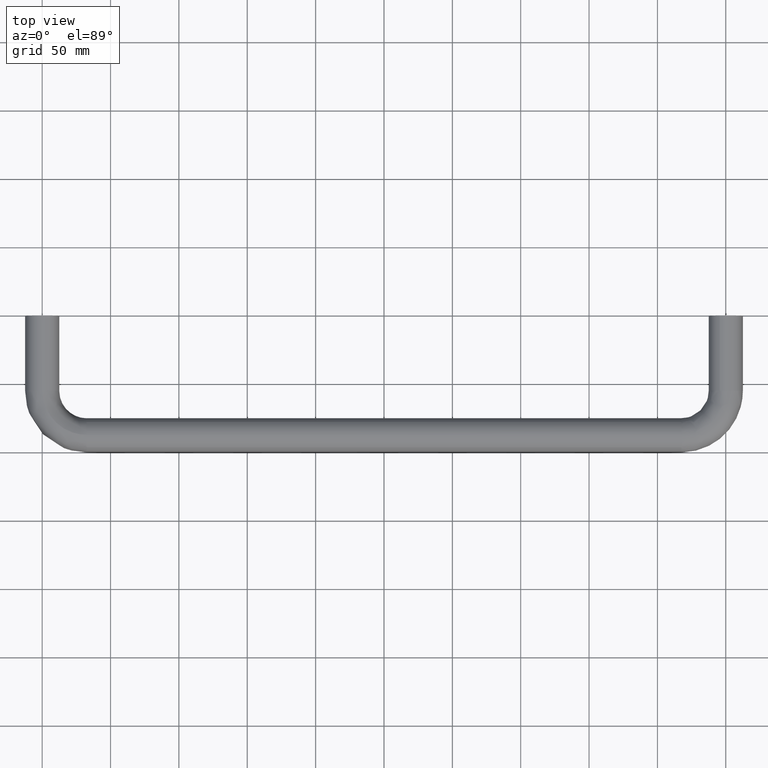
[diagram: clean part render]
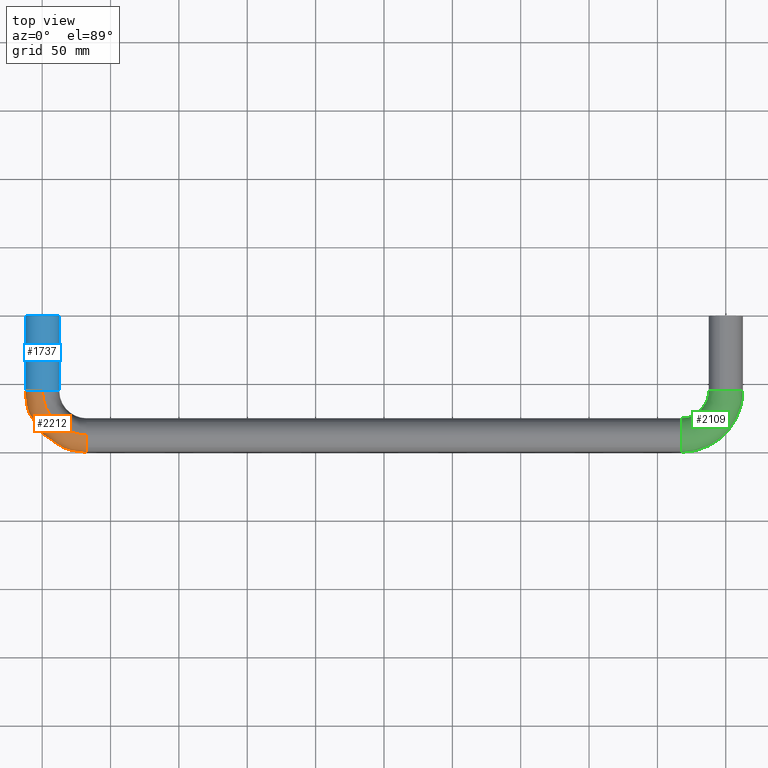
[diagram: same view with three faces highlighted in distinct colors, each labeled with its STEP entity id]
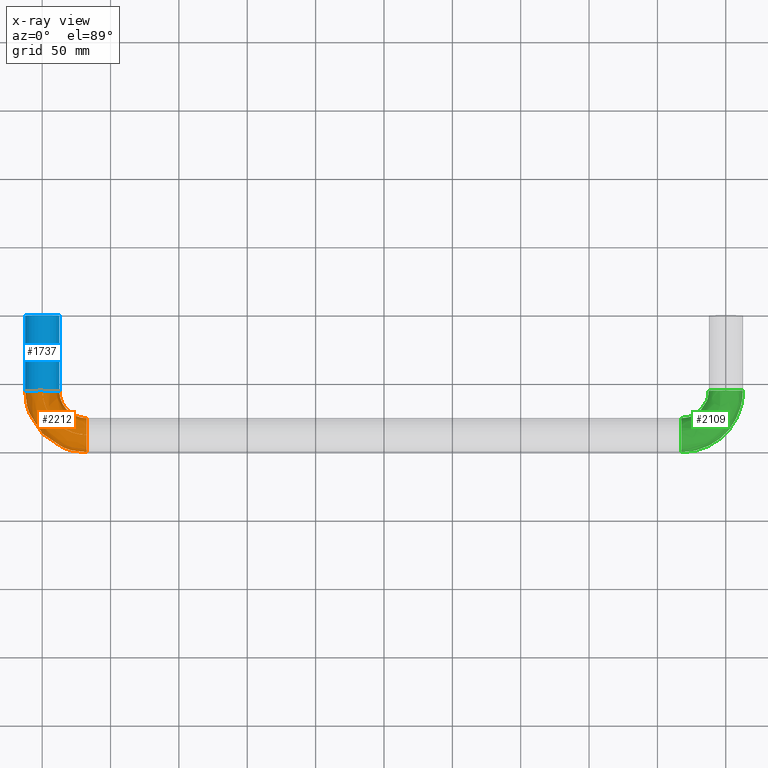
[diagram: x-ray of the same camera — body ghosted, the three highlighted faces saturated]
A machine part, top view with three faces highlighted in distinct colors.
The next image is the same camera in x-ray (body ghosted, the three faces saturated) — at least one of them is partly hidden behind the body in this view.
Their STEP definitions:

[orange] entity #2212 — the highlighted face is a freeform B-spline surface patch.
#1363=CARTESIAN_POINT('',(32.499999996103540,-87.342924495854845,12.499013052477279));
#1364=VERTEX_POINT('',#1363);
#1378=CARTESIAN_POINT('',(32.500000000000000,-87.500000000000000,12.500000000000000));
#1379=VERTEX_POINT('',#1378);
#1380=CARTESIAN_POINT('',(32.499999996103540,-87.342924495854845,12.499013052477286));
#1381=CARTESIAN_POINT('',(32.500000000000000,-87.421459144497447,12.500000000000000));
#1382=CARTESIAN_POINT('',(32.500000000000000,-87.500000000000000,12.500000000000000));
#1390=(BOUNDED_CURVE()B_SPLINE_CURVE(2,(#1380,#1381,#1382),.UNSPECIFIED.,.F.,.U.)B_SPLINE_CURVE_WITH_KNOTS((3,3),(0.997784295764047,1.0),.UNSPECIFIED.)CURVE()GEOMETRIC_REPRESENTATION_ITEM()RATIONAL_B_SPLINE_CURVE((0.994854295281092,0.997404141017573,1.0))REPRESENTATION_ITEM(''));
#1391=EDGE_CURVE('',#1364,#1379,#1390,.T.);
#1393=CARTESIAN_POINT('',(32.500000000000000,-96.415632055581426,8.761364337218531));
#1394=VERTEX_POINT('',#1393);
#1395=CARTESIAN_POINT('',(32.500000000000000,-87.500000000000000,12.500000000000000));
#1396=CARTESIAN_POINT('',(32.499999999999993,-92.741686230816370,12.499999999999998));
#1397=CARTESIAN_POINT('',(32.500000000000000,-96.415632055581554,8.761364337218637));
#1405=(BOUNDED_CURVE()B_SPLINE_CURVE(2,(#1395,#1396,#1397),.UNSPECIFIED.,.F.,.U.)B_SPLINE_CURVE_WITH_KNOTS((3,3),(0.0,0.126316782411142),.UNSPECIFIED.)CURVE()GEOMETRIC_REPRESENTATION_ITEM()RATIONAL_B_SPLINE_CURVE((1.0,0.852010684037768,0.853569641864137))REPRESENTATION_ITEM(''));
#1406=EDGE_CURVE('',#1379,#1394,#1405,.T.);
#1475=CARTESIAN_POINT('',(32.500000001655842,-75.030429128414596,-0.871666380278624));
#1476=VERTEX_POINT('',#1475);
#1538=CARTESIAN_POINT('',(32.500000000000000,-87.500000000000000,-12.500000000000000));
#1539=VERTEX_POINT('',#1538);
#1540=CARTESIAN_POINT('',(32.499999999999993,-96.415632055581554,8.761364337218636));
#1541=CARTESIAN_POINT('',(32.500000000000000,-100.0,5.113883817717606));
#1542=CARTESIAN_POINT('',(32.500000000000000,-99.999999999999986,0.0));
#1543=CARTESIAN_POINT('',(32.499999999999993,-99.999999999999986,-12.499999999999998));
#1544=CARTESIAN_POINT('',(32.500000000000000,-87.500000000000000,-12.500000000000000));
#1552=(BOUNDED_CURVE()B_SPLINE_CURVE(2,(#1540,#1541,#1542,#1543,#1544),.UNSPECIFIED.,.F.,.U.)B_SPLINE_CURVE_WITH_KNOTS((3,2,3),(0.126316782411142,0.250000000000000,0.500000000000000),.UNSPECIFIED.)CURVE()GEOMETRIC_REPRESENTATION_ITEM()RATIONAL_B_SPLINE_CURVE((0.853569641864137,0.855096097148779,1.0,0.707106781186547,1.0))REPRESENTATION_ITEM(''));
#1553=EDGE_CURVE('',#1394,#1539,#1552,.T.);
#1555=CARTESIAN_POINT('',(32.500000000000000,-87.500000000000000,-12.500000000000000));
#1556=CARTESIAN_POINT('',(32.500000000000000,-75.843290787792370,-12.500000000000002));
#1557=CARTESIAN_POINT('',(32.500000001655842,-75.030429128414596,-0.871666380278624));
#1565=(BOUNDED_CURVE()B_SPLINE_CURVE(2,(#1555,#1556,#1557),.UNSPECIFIED.,.F.,.U.)B_SPLINE_CURVE_WITH_KNOTS((3,3),(0.500000000000000,0.737833666244487),.UNSPECIFIED.)CURVE()GEOMETRIC_REPRESENTATION_ITEM()RATIONAL_B_SPLINE_CURVE((1.0,0.721360527805791,0.972879833470602))REPRESENTATION_ITEM(''));
#1566=EDGE_CURVE('',#1539,#1476,#1565,.T.);
#1597=CARTESIAN_POINT('',(-4.395224680098610,-55.0,-11.701794734631610));
#1598=VERTEX_POINT('',#1597);
#1599=CARTESIAN_POINT('',(0.0,-55.0,-12.500000000000000));
#1600=VERTEX_POINT('',#1599);
#1601=CARTESIAN_POINT('',(-4.395224680098610,-54.999999999999986,-11.701794734631608));
#1602=CARTESIAN_POINT('',(-2.270092326059568,-55.000000000000007,-12.499999999999998));
#1603=CARTESIAN_POINT('',(0.0,-55.0,-12.500000000000000));
#1611=(BOUNDED_CURVE()B_SPLINE_CURVE(2,(#1601,#1602,#1603),.UNSPECIFIED.,.F.,.U.)B_SPLINE_CURVE_WITH_KNOTS((3,3),(0.440284170893403,0.500000000000000),.UNSPECIFIED.)CURVE()GEOMETRIC_REPRESENTATION_ITEM()RATIONAL_B_SPLINE_CURVE((0.893499554629027,0.930038554395419,1.0))REPRESENTATION_ITEM(''));
#1612=EDGE_CURVE('',#1598,#1600,#1611,.T.);
#1668=CARTESIAN_POINT('',(-12.476684980152760,-55.0,0.763106746157077));
#1669=VERTEX_POINT('',#1668);
#1675=CARTESIAN_POINT('',(0.0,-55.0,12.500000000000000));
#1676=VERTEX_POINT('',#1675);
#1677=CARTESIAN_POINT('',(0.0,-55.0,12.500000000000000));
#1678=CARTESIAN_POINT('',(-11.758825832598347,-55.000000000000014,12.500000000000000));
#1679=CARTESIAN_POINT('',(-12.476684980152765,-55.0,0.763106746157077));
#1687=(BOUNDED_CURVE()B_SPLINE_CURVE(2,(#1677,#1678,#1679),.UNSPECIFIED.,.F.,.U.)B_SPLINE_CURVE_WITH_KNOTS((3,3),(0.0,0.239332962187442),.UNSPECIFIED.)CURVE()GEOMETRIC_REPRESENTATION_ITEM()RATIONAL_B_SPLINE_CURVE((1.0,0.719603993347047,0.976072041556341))REPRESENTATION_ITEM(''));
#1688=EDGE_CURVE('',#1676,#1669,#1687,.T.);
#1690=CARTESIAN_POINT('',(0.157075501708463,-55.000000002799233,12.499013052507911));
#1691=VERTEX_POINT('',#1690);
#1692=CARTESIAN_POINT('',(0.157075501708463,-55.000000002799233,12.499013052507905));
#1693=CARTESIAN_POINT('',(0.078540853065549,-55.0,12.499999999999998));
#1694=CARTESIAN_POINT('',(0.0,-55.0,12.500000000000000));
#1702=(BOUNDED_CURVE()B_SPLINE_CURVE(2,(#1692,#1693,#1694),.UNSPECIFIED.,.F.,.U.)B_SPLINE_CURVE_WITH_KNOTS((3,3),(0.997784295832618,1.0),.UNSPECIFIED.)CURVE()GEOMETRIC_REPRESENTATION_ITEM()RATIONAL_B_SPLINE_CURVE((0.994854295438916,0.997404141097909,1.0))REPRESENTATION_ITEM(''));
#1703=EDGE_CURVE('',#1691,#1676,#1702,.T.);
#1705=CARTESIAN_POINT('',(12.469570871586880,-54.999999998405812,-0.871666380257642));
#1706=VERTEX_POINT('',#1705);
#1722=CARTESIAN_POINT('',(0.0,-55.0,-12.500000000000000));
#1723=CARTESIAN_POINT('',(11.656709212246867,-55.0,-12.500000000000000));
#1724=CARTESIAN_POINT('',(12.469570871586882,-54.999999998405812,-0.871666380257642));
#1732=(BOUNDED_CURVE()B_SPLINE_CURVE(2,(#1722,#1723,#1724),.UNSPECIFIED.,.F.,.U.)B_SPLINE_CURVE_WITH_KNOTS((3,3),(0.500000000000000,0.737833666245064),.UNSPECIFIED.)CURVE()GEOMETRIC_REPRESENTATION_ITEM()RATIONAL_B_SPLINE_CURVE((1.0,0.721360527805115,0.972879833471823))REPRESENTATION_ITEM(''));
#1733=EDGE_CURVE('',#1600,#1706,#1732,.T.);
#1752=CARTESIAN_POINT('',(-12.476684980152761,-55.000000000000007,0.763106746157077));
#1753=CARTESIAN_POINT('',(-12.500000000000005,-55.000000000000007,0.381909543209257));
#1754=CARTESIAN_POINT('',(-12.500000000000000,-55.0,0.0));
#1755=CARTESIAN_POINT('',(-12.500000000000000,-55.000000000000014,-8.657619945857883));
#1756=CARTESIAN_POINT('',(-4.395224680098611,-55.0,-11.701794734631610));
#1764=(BOUNDED_CURVE()B_SPLINE_CURVE(2,(#1752,#1753,#1754,#1755,#1756),.UNSPECIFIED.,.F.,.U.)B_SPLINE_CURVE_WITH_KNOTS((3,2,3),(0.239332962187442,0.250000000000000,0.440284170893404),.UNSPECIFIED.)CURVE()GEOMETRIC_REPRESENTATION_ITEM()RATIONAL_B_SPLINE_CURVE((0.976072041556342,0.987502787839500,1.0,0.777068226791128,0.893499554629028))REPRESENTATION_ITEM(''));
#1765=EDGE_CURVE('',#1669,#1598,#1764,.T.);
#2140=CARTESIAN_POINT('',(12.536022956801924,-53.615886789675130,-0.606601381332851));
#2141=CARTESIAN_POINT('',(10.944486397594913,-76.571667497787260,-0.606601381332850));
#2142=CARTESIAN_POINT('',(33.899068399525042,-74.962934563179502,-0.606601381332850));
#2143=CARTESIAN_POINT('',(12.526818279209644,-53.615248624452605,-0.738594541797111));
#2144=CARTESIAN_POINT('',(10.934547919273847,-76.581613424093192,-0.738594541797111));
#2145=CARTESIAN_POINT('',(33.899713460051778,-74.972138760121425,-0.738594541797111));
#2146=CARTESIAN_POINT('',(11.696349228770707,-53.557671760835120,-12.647347839919878));
#2147=CARTESIAN_POINT('',(10.037873530479553,-77.478959788723287,-12.647347839919876));
#2148=CARTESIAN_POINT('',(33.957912435272945,-75.802564445083178,-12.647347839919879));
#2149=CARTESIAN_POINT('',(-0.078870558547338,-52.741289472534575,-12.499013052547699));
#2150=CARTESIAN_POINT('',(-2.676071679316352,-90.202432943183467,-12.499013052547697));
#2151=CARTESIAN_POINT('',(34.783115643343734,-87.577169353345994,-12.499013052547690));
#2152=CARTESIAN_POINT('',(-12.547951825996599,-51.876801396559181,-12.341937554005790));
#2153=CARTESIAN_POINT('',(-16.139193295235668,-103.675643943290620,-12.341937554005790));
#2154=CARTESIAN_POINT('',(35.656944416771523,-100.045599509644220,-12.341937554005792));
#2155=CARTESIAN_POINT('',(-12.391252481159530,-51.887665445980247,0.157075498541906));
#2156=CARTESIAN_POINT('',(-15.970001813407443,-103.506325667847220,0.157075498541906));
#2157=CARTESIAN_POINT('',(35.645962982505523,-99.888908347341911,0.157075498541906));
#2158=CARTESIAN_POINT('',(-12.234553136322470,-51.898529495401299,12.656088551089603));
#2159=CARTESIAN_POINT('',(-15.800810331579218,-103.337007392403810,12.656088551089603));
#2160=CARTESIAN_POINT('',(35.634981548239523,-99.732217185039573,12.656088551089603));
#2161=CARTESIAN_POINT('',(0.366578912228247,-52.772172722685518,12.497349582575096));
#2162=CARTESIAN_POINT('',(-2.195110791327415,-89.721111618787830,12.497349582575094));
#2163=CARTESIAN_POINT('',(34.751898703111905,-87.131743143074630,12.497349582575096));
#2164=CARTESIAN_POINT('',(0.497476237730351,-52.781247904300457,12.495700642912256));
#2165=CARTESIAN_POINT('',(-2.053778276554744,-89.579673188159916,12.495700642912254));
#2166=CARTESIAN_POINT('',(34.742725465169570,-87.000852652776047,12.495700642912253));
#2174=(BOUNDED_SURFACE()B_SPLINE_SURFACE(2,2,((#2140,#2143,#2146,#2149,#2152,#2155,#2158,#2161,#2164),(#2141,#2144,#2147,#2150,#2153,#2156,#2159,#2162,#2165),(#2142,#2145,#2148,#2151,#2154,#2157,#2160,#2163,#2166)),.UNSPECIFIED.,.F.,.F.,.U.)B_SPLINE_SURFACE_WITH_KNOTS((3,3),(3,1,2,2,1,3),(0.0,82.004379108096202),(0.0,0.306782556558622,20.189033550467190,40.899711669121942,61.610389787776697,61.921937893503767),.UNSPECIFIED.)GEOMETRIC_REPRESENTATION_ITEM()RATIONAL_B_SPLINE_SURFACE(((0.908116030366930,0.904437933542395,0.662386295974072,0.921487970695580,0.651590392860676,0.921487970695580,0.651590392860676,0.925548005747694,0.929608040799809),(0.592626726255751,0.590226439940911,0.432266152092013,0.601353110281207,0.425220862167464,0.601353110281207,0.425220862167464,0.604002645363686,0.606652180446164),(0.898083420910020,0.894445958660530,0.655068439230114,0.911307631818076,0.644391806205615,0.911307631818076,0.644391806205615,0.915322812749464,0.919337993680853)))REPRESENTATION_ITEM('')SURFACE());
#2175=ORIENTED_EDGE('',*,*,#1566,.F.);
#2176=ORIENTED_EDGE('',*,*,#1553,.F.);
#2177=ORIENTED_EDGE('',*,*,#1406,.F.);
#2178=ORIENTED_EDGE('',*,*,#1391,.F.);
#2179=CARTESIAN_POINT('',(0.157075501708463,-55.000000002799226,12.499013052507902));
#2180=CARTESIAN_POINT('',(0.157075504140359,-87.342924493665151,12.499013052547697));
#2181=CARTESIAN_POINT('',(32.499999996103540,-87.342924495854831,12.499013052477284));
#2189=(BOUNDED_CURVE()B_SPLINE_CURVE(2,(#2179,#2180,#2181),.UNSPECIFIED.,.F.,.U.)B_SPLINE_CURVE_WITH_KNOTS((3,3),(-1.747842683488428,-0.278273131195405),.UNSPECIFIED.)CURVE()GEOMETRIC_REPRESENTATION_ITEM()RATIONAL_B_SPLINE_CURVE((0.893710737898865,0.628668022965895,0.884455039368525))REPRESENTATION_ITEM(''));
#2190=EDGE_CURVE('',#1691,#1364,#2189,.T.);
#2191=ORIENTED_EDGE('',*,*,#2190,.F.);
#2192=ORIENTED_EDGE('',*,*,#1703,.T.);
#2193=ORIENTED_EDGE('',*,*,#1688,.T.);
#2194=ORIENTED_EDGE('',*,*,#1765,.T.);
#2195=ORIENTED_EDGE('',*,*,#1612,.T.);
#2196=ORIENTED_EDGE('',*,*,#1733,.T.);
#2197=CARTESIAN_POINT('',(12.469570871586884,-54.999999998405812,-0.871666380257642));
#2198=CARTESIAN_POINT('',(12.469570919817036,-75.030429080306305,-0.871665644693026));
#2199=CARTESIAN_POINT('',(32.500000001655849,-75.030429128414596,-0.871666380278624));
#2207=(BOUNDED_CURVE()B_SPLINE_CURVE(2,(#2197,#2198,#2199),.UNSPECIFIED.,.F.,.U.)B_SPLINE_CURVE_WITH_KNOTS((3,3),(-1.747842683835509,-0.278273130775413),.UNSPECIFIED.)CURVE()GEOMETRIC_REPRESENTATION_ITEM()RATIONAL_B_SPLINE_CURVE((0.873607430651412,0.614526639090470,0.864559931668131))REPRESENTATION_ITEM(''));
#2208=EDGE_CURVE('',#1706,#1476,#2207,.T.);
#2209=ORIENTED_EDGE('',*,*,#2208,.T.);
#2210=EDGE_LOOP('',(#2175,#2176,#2177,#2178,#2191,#2192,#2193,#2194,#2195,#2196,#2209));
#2211=FACE_OUTER_BOUND('',#2210,.T.);
#2212=ADVANCED_FACE('',(#2211),#2174,.T.);

[blue] entity #1737 — the highlighted face is a freeform B-spline surface patch.
#1571=CARTESIAN_POINT('',(-4.395224679894646,1.375000000069982,-11.701794734708219));
#1572=CARTESIAN_POINT('',(-2.637368146442596,1.375000000069982,-12.362050242064381));
#1573=CARTESIAN_POINT('',(-0.763106744185705,1.375000000069982,-12.476684980273340));
#1574=CARTESIAN_POINT('',(11.713578236087629,1.375000000069982,-13.239791724459041));
#1575=CARTESIAN_POINT('',(12.476684980273340,1.375000000069982,-0.763106744185705));
#1576=CARTESIAN_POINT('',(13.239791724459041,1.375000000069982,11.713578236087629));
#1577=CARTESIAN_POINT('',(0.763106744185705,1.375000000069982,12.476684980273340));
#1578=CARTESIAN_POINT('',(-11.713578236087629,1.375000000069982,13.239791724459041));
#1579=CARTESIAN_POINT('',(-12.476684980273340,1.375000000069982,0.763106744185705));
#1580=CARTESIAN_POINT('',(-4.395224679894646,-56.409375002870959,-11.701794734708219));
#1581=CARTESIAN_POINT('',(-2.637368146442596,-56.409375002870959,-12.362050242064381));
#1582=CARTESIAN_POINT('',(-0.763106744185705,-56.409375002870959,-12.476684980273340));
#1583=CARTESIAN_POINT('',(11.713578236087629,-56.409375002870952,-13.239791724459041));
#1584=CARTESIAN_POINT('',(12.476684980273340,-56.409375002870959,-0.763106744185705));
#1585=CARTESIAN_POINT('',(13.239791724459041,-56.409375002870952,11.713578236087629));
#1586=CARTESIAN_POINT('',(0.763106744185705,-56.409375002870959,12.476684980273340));
#1587=CARTESIAN_POINT('',(-11.713578236087629,-56.409375002870952,13.239791724459041));
#1588=CARTESIAN_POINT('',(-12.476684980273340,-56.409375002870959,0.763106744185705));
#1596=(BOUNDED_SURFACE()B_SPLINE_SURFACE(2,1,((#1571,#1580),(#1572,#1581),(#1573,#1582),(#1574,#1583),(#1575,#1584),(#1576,#1585),(#1577,#1586),(#1578,#1587),(#1579,#1588)),.UNSPECIFIED.,.F.,.F.,.U.)B_SPLINE_SURFACE_WITH_KNOTS((3,2,2,2,3),(2,2),(0.0,4.142135623730949,24.852813742385699,45.563491861040447,66.274169979695188),(0.0,57.784375002940948),.UNSPECIFIED.)GEOMETRIC_REPRESENTATION_ITEM()RATIONAL_B_SPLINE_SURFACE(((0.906274169979695,0.906274169979695),(0.941421356237309,0.941421356237309),(1.0,1.0),(0.707106781186548,0.707106781186548),(1.0,1.0),(0.707106781186548,0.707106781186548),(1.0,1.0),(0.707106781186548,0.707106781186548),(1.0,1.0)))REPRESENTATION_ITEM('')SURFACE());
#1597=CARTESIAN_POINT('',(-4.395224680098610,-55.0,-11.701794734631610));
#1598=VERTEX_POINT('',#1597);
#1599=CARTESIAN_POINT('',(0.0,-55.0,-12.500000000000000));
#1600=VERTEX_POINT('',#1599);
#1601=CARTESIAN_POINT('',(-4.395224680098610,-54.999999999999986,-11.701794734631608));
#1602=CARTESIAN_POINT('',(-2.270092326059568,-55.000000000000007,-12.499999999999998));
#1603=CARTESIAN_POINT('',(0.0,-55.0,-12.500000000000000));
#1611=(BOUNDED_CURVE()B_SPLINE_CURVE(2,(#1601,#1602,#1603),.UNSPECIFIED.,.F.,.U.)B_SPLINE_CURVE_WITH_KNOTS((3,3),(0.440284170893403,0.500000000000000),.UNSPECIFIED.)CURVE()GEOMETRIC_REPRESENTATION_ITEM()RATIONAL_B_SPLINE_CURVE((0.893499554629027,0.930038554395419,1.0))REPRESENTATION_ITEM(''));
#1612=EDGE_CURVE('',#1598,#1600,#1611,.T.);
#1613=ORIENTED_EDGE('',*,*,#1612,.F.);
#1614=CARTESIAN_POINT('',(-4.395224680098608,1.837562E-015,-11.701794734631610));
#1615=VERTEX_POINT('',#1614);
#1616=CARTESIAN_POINT('',(-4.395224680098608,1.837562E-015,-11.701794734631610));
#1617=CARTESIAN_POINT('',(-4.395224680098610,-55.0,-11.701794734631610));
#1618=QUASI_UNIFORM_CURVE('',1,(#1616,#1617),.UNSPECIFIED.,.F.,.U.);
#1619=EDGE_CURVE('',#1615,#1598,#1618,.T.);
#1620=ORIENTED_EDGE('',*,*,#1619,.F.);
#1621=CARTESIAN_POINT('',(0.0,0.0,-12.500000000000000));
#1622=VERTEX_POINT('',#1621);
#1623=CARTESIAN_POINT('',(-4.395224680098608,1.837562E-015,-11.701794734631607));
#1624=CARTESIAN_POINT('',(-2.270092326059566,0.0,-12.499999999999996));
#1625=CARTESIAN_POINT('',(0.0,0.0,-12.500000000000000));
#1633=(BOUNDED_CURVE()B_SPLINE_CURVE(2,(#1623,#1624,#1625),.UNSPECIFIED.,.F.,.U.)B_SPLINE_CURVE_WITH_KNOTS((3,3),(0.440284170893403,0.500000000000000),.UNSPECIFIED.)CURVE()GEOMETRIC_REPRESENTATION_ITEM()RATIONAL_B_SPLINE_CURVE((0.893499554629028,0.930038554395419,1.0))REPRESENTATION_ITEM(''));
#1634=EDGE_CURVE('',#1615,#1622,#1633,.T.);
#1635=ORIENTED_EDGE('',*,*,#1634,.T.);
#1636=CARTESIAN_POINT('',(0.0,0.0,12.500000000000000));
#1637=VERTEX_POINT('',#1636);
#1638=CARTESIAN_POINT('',(0.0,0.0,-12.500000000000000));
#1639=CARTESIAN_POINT('',(12.499999999999998,0.0,-12.499999999999998));
#1640=CARTESIAN_POINT('',(12.500000000000000,0.0,0.0));
#1641=CARTESIAN_POINT('',(12.499999999999998,0.0,12.499999999999998));
#1642=CARTESIAN_POINT('',(0.0,0.0,12.500000000000000));
#1650=(BOUNDED_CURVE()B_SPLINE_CURVE(2,(#1638,#1639,#1640,#1641,#1642),.UNSPECIFIED.,.F.,.U.)B_SPLINE_CURVE_WITH_KNOTS((3,2,3),(0.500000000000000,0.750000000000000,1.0),.UNSPECIFIED.)CURVE()GEOMETRIC_REPRESENTATION_ITEM()RATIONAL_B_SPLINE_CURVE((1.0,0.707106781186547,1.0,0.707106781186547,1.0))REPRESENTATION_ITEM(''));
#1651=EDGE_CURVE('',#1622,#1637,#1650,.T.);
#1652=ORIENTED_EDGE('',*,*,#1651,.T.);
#1653=CARTESIAN_POINT('',(-12.476684980152760,1.887379E-015,0.763106746157078));
#1654=VERTEX_POINT('',#1653);
#1655=CARTESIAN_POINT('',(0.0,0.0,12.500000000000000));
#1656=CARTESIAN_POINT('',(-11.758825832598347,0.0,12.500000000000000));
#1657=CARTESIAN_POINT('',(-12.476684980152765,1.887379E-015,0.763106746157078));
#1665=(BOUNDED_CURVE()B_SPLINE_CURVE(2,(#1655,#1656,#1657),.UNSPECIFIED.,.F.,.U.)B_SPLINE_CURVE_WITH_KNOTS((3,3),(0.0,0.239332962187442),.UNSPECIFIED.)CURVE()GEOMETRIC_REPRESENTATION_ITEM()RATIONAL_B_SPLINE_CURVE((1.0,0.719603993347047,0.976072041556341))REPRESENTATION_ITEM(''));
#1666=EDGE_CURVE('',#1637,#1654,#1665,.T.);
#1667=ORIENTED_EDGE('',*,*,#1666,.T.);
#1668=CARTESIAN_POINT('',(-12.476684980152760,-55.0,0.763106746157077));
#1669=VERTEX_POINT('',#1668);
#1670=CARTESIAN_POINT('',(-12.476684980152760,1.887379E-015,0.763106746157078));
#1671=CARTESIAN_POINT('',(-12.476684980152760,-55.0,0.763106746157077));
#1672=QUASI_UNIFORM_CURVE('',1,(#1670,#1671),.UNSPECIFIED.,.F.,.U.);
#1673=EDGE_CURVE('',#1654,#1669,#1672,.T.);
#1674=ORIENTED_EDGE('',*,*,#1673,.T.);
#1675=CARTESIAN_POINT('',(0.0,-55.0,12.500000000000000));
#1676=VERTEX_POINT('',#1675);
#1677=CARTESIAN_POINT('',(0.0,-55.0,12.500000000000000));
#1678=CARTESIAN_POINT('',(-11.758825832598347,-55.000000000000014,12.500000000000000));
#1679=CARTESIAN_POINT('',(-12.476684980152765,-55.0,0.763106746157077));
#1687=(BOUNDED_CURVE()B_SPLINE_CURVE(2,(#1677,#1678,#1679),.UNSPECIFIED.,.F.,.U.)B_SPLINE_CURVE_WITH_KNOTS((3,3),(0.0,0.239332962187442),.UNSPECIFIED.)CURVE()GEOMETRIC_REPRESENTATION_ITEM()RATIONAL_B_SPLINE_CURVE((1.0,0.719603993347047,0.976072041556341))REPRESENTATION_ITEM(''));
#1688=EDGE_CURVE('',#1676,#1669,#1687,.T.);
#1689=ORIENTED_EDGE('',*,*,#1688,.F.);
#1690=CARTESIAN_POINT('',(0.157075501708463,-55.000000002799233,12.499013052507911));
#1691=VERTEX_POINT('',#1690);
#1692=CARTESIAN_POINT('',(0.157075501708463,-55.000000002799233,12.499013052507905));
#1693=CARTESIAN_POINT('',(0.078540853065549,-55.0,12.499999999999998));
#1694=CARTESIAN_POINT('',(0.0,-55.0,12.500000000000000));
#1702=(BOUNDED_CURVE()B_SPLINE_CURVE(2,(#1692,#1693,#1694),.UNSPECIFIED.,.F.,.U.)B_SPLINE_CURVE_WITH_KNOTS((3,3),(0.997784295832618,1.0),.UNSPECIFIED.)CURVE()GEOMETRIC_REPRESENTATION_ITEM()RATIONAL_B_SPLINE_CURVE((0.994854295438916,0.997404141097909,1.0))REPRESENTATION_ITEM(''));
#1703=EDGE_CURVE('',#1691,#1676,#1702,.T.);
#1704=ORIENTED_EDGE('',*,*,#1703,.F.);
#1705=CARTESIAN_POINT('',(12.469570871586880,-54.999999998405812,-0.871666380257642));
#1706=VERTEX_POINT('',#1705);
#1707=CARTESIAN_POINT('',(12.469570871586884,-54.999999998405812,-0.871666380257642));
#1708=CARTESIAN_POINT('',(12.499999999999995,-54.999999999999993,-0.436364686692071));
#1709=CARTESIAN_POINT('',(12.500000000000000,-55.0,0.0));
#1710=CARTESIAN_POINT('',(12.499999999999998,-55.000000000000007,12.343899117586393));
#1711=CARTESIAN_POINT('',(0.157075501708463,-55.000000002799226,12.499013052507909));
#1719=(BOUNDED_CURVE()B_SPLINE_CURVE(2,(#1707,#1708,#1709,#1710,#1711),.UNSPECIFIED.,.F.,.U.)B_SPLINE_CURVE_WITH_KNOTS((3,2,3),(0.737833666245065,0.750000000000000,0.997784295832618),.UNSPECIFIED.)CURVE()GEOMETRIC_REPRESENTATION_ITEM()RATIONAL_B_SPLINE_CURVE((0.972879833471825,0.985746253381433,1.0,0.709702640088639,0.994854295438915))REPRESENTATION_ITEM(''));
#1720=EDGE_CURVE('',#1706,#1691,#1719,.T.);
#1721=ORIENTED_EDGE('',*,*,#1720,.F.);
#1722=CARTESIAN_POINT('',(0.0,-55.0,-12.500000000000000));
#1723=CARTESIAN_POINT('',(11.656709212246867,-55.0,-12.500000000000000));
#1724=CARTESIAN_POINT('',(12.469570871586882,-54.999999998405812,-0.871666380257642));
#1732=(BOUNDED_CURVE()B_SPLINE_CURVE(2,(#1722,#1723,#1724),.UNSPECIFIED.,.F.,.U.)B_SPLINE_CURVE_WITH_KNOTS((3,3),(0.500000000000000,0.737833666245064),.UNSPECIFIED.)CURVE()GEOMETRIC_REPRESENTATION_ITEM()RATIONAL_B_SPLINE_CURVE((1.0,0.721360527805115,0.972879833471823))REPRESENTATION_ITEM(''));
#1733=EDGE_CURVE('',#1600,#1706,#1732,.T.);
#1734=ORIENTED_EDGE('',*,*,#1733,.F.);
#1735=EDGE_LOOP('',(#1613,#1620,#1635,#1652,#1667,#1674,#1689,#1704,#1721,#1734));
#1736=FACE_OUTER_BOUND('',#1735,.T.);
#1737=ADVANCED_FACE('',(#1736),#1596,.T.);

[green] entity #2109 — the highlighted face is a freeform B-spline surface patch.
#1174=CARTESIAN_POINT('',(495.604775319900800,-55.000001781185340,11.701794734633131));
#1175=VERTEX_POINT('',#1174);
#1176=CARTESIAN_POINT('',(500.0,-55.0,12.500000000000000));
#1177=VERTEX_POINT('',#1176);
#1178=CARTESIAN_POINT('',(495.604775319900800,-55.000001781185340,11.701794734633133));
#1179=CARTESIAN_POINT('',(497.729907673939750,-55.000000030754833,12.500000000000060));
#1180=CARTESIAN_POINT('',(500.0,-55.0,12.500000000000000));
#1188=(BOUNDED_CURVE()B_SPLINE_CURVE(2,(#1178,#1179,#1180),.UNSPECIFIED.,.F.,.U.)B_SPLINE_CURVE_WITH_KNOTS((3,3),(0.940284170893386,1.0),.UNSPECIFIED.)CURVE()GEOMETRIC_REPRESENTATION_ITEM()RATIONAL_B_SPLINE_CURVE((0.893499554629007,0.930038554395400,1.0))REPRESENTATION_ITEM(''));
#1189=EDGE_CURVE('',#1175,#1177,#1188,.T.);
#1191=CARTESIAN_POINT('',(512.469570613121500,-55.000000120312741,-0.871670077700290));
#1192=VERTEX_POINT('',#1191);
#1193=CARTESIAN_POINT('',(500.0,-55.0,12.500000000000000));
#1194=CARTESIAN_POINT('',(512.500000000000000,-55.0,12.499999999999998));
#1195=CARTESIAN_POINT('',(512.500000000000000,-55.0,0.0));
#1196=CARTESIAN_POINT('',(512.500000000000000,-55.0,-0.436366173054179));
#1197=CARTESIAN_POINT('',(512.469570613121500,-55.000000120312741,-0.871670077700290));
#1205=(BOUNDED_CURVE()B_SPLINE_CURVE(2,(#1193,#1194,#1195,#1196,#1197),.UNSPECIFIED.,.F.,.U.)B_SPLINE_CURVE_WITH_KNOTS((3,2,3),(0.0,0.250000000000000,0.262166374605669),.UNSPECIFIED.)CURVE()GEOMETRIC_REPRESENTATION_ITEM()RATIONAL_B_SPLINE_CURVE((1.0,0.707106781186547,1.0,0.985746205521821,0.972879747069032))REPRESENTATION_ITEM(''));
#1206=EDGE_CURVE('',#1177,#1192,#1205,.T.);
#1208=CARTESIAN_POINT('',(499.842976333824480,-55.000053922206661,-12.499013703712871));
#1209=VERTEX_POINT('',#1208);
#1217=CARTESIAN_POINT('',(487.523315019831100,-55.000028776071389,-0.763106745858294));
#1218=VERTEX_POINT('',#1217);
#1219=CARTESIAN_POINT('',(499.842976333824540,-55.000053922206661,-12.499013703712865));
#1220=CARTESIAN_POINT('',(488.232192360559850,-55.000053764893281,-12.353148765097078));
#1221=CARTESIAN_POINT('',(487.523315019831100,-55.000028776071389,-0.763106745858294));
#1229=(BOUNDED_CURVE()B_SPLINE_CURVE(2,(#1219,#1220,#1221),.UNSPECIFIED.,.F.,.U.)B_SPLINE_CURVE_WITH_KNOTS((3,3),(0.502214974771662,0.739332962194921),.UNSPECIFIED.)CURVE()GEOMETRIC_REPRESENTATION_ITEM()RATIONAL_B_SPLINE_CURVE((0.994855974229849,0.721977549623078,0.976072041572370))REPRESENTATION_ITEM(''));
#1230=EDGE_CURVE('',#1209,#1218,#1229,.T.);
#1308=CARTESIAN_POINT('',(487.523315019831050,-55.000028776071396,-0.763106745858294));
#1309=CARTESIAN_POINT('',(487.500000000000740,-55.000027954187473,-0.381909542882959));
#1310=CARTESIAN_POINT('',(487.500000000000680,-55.000027130451272,5.350478E-011));
#1311=CARTESIAN_POINT('',(487.500000000000280,-55.000008456932392,8.657619945873574));
#1312=CARTESIAN_POINT('',(495.604775319900740,-55.000001781185340,11.701794734633124));
#1320=(BOUNDED_CURVE()B_SPLINE_CURVE(2,(#1308,#1309,#1310,#1311,#1312),.UNSPECIFIED.,.F.,.U.)B_SPLINE_CURVE_WITH_KNOTS((3,2,3),(0.739332962194921,0.750000000000000,0.940284170893387),.UNSPECIFIED.)CURVE()GEOMETRIC_REPRESENTATION_ITEM()RATIONAL_B_SPLINE_CURVE((0.976072041572371,0.987502787848263,1.0,0.777068226791147,0.893499554629007))REPRESENTATION_ITEM(''));
#1321=EDGE_CURVE('',#1218,#1175,#1320,.T.);
#1408=CARTESIAN_POINT('',(467.500000000000110,-96.415632073586025,8.761364318896899));
#1409=VERTEX_POINT('',#1408);
#1415=CARTESIAN_POINT('',(467.500000000000000,-87.500000000000000,12.500000000000000));
#1416=VERTEX_POINT('',#1415);
#1417=CARTESIAN_POINT('',(467.500000000000000,-87.500000000000000,12.500000000000000));
#1418=CARTESIAN_POINT('',(467.500000000000110,-92.741686245918586,12.500000000000005));
#1419=CARTESIAN_POINT('',(467.500000000000000,-96.415632073586139,8.761364318897023));
#1427=(BOUNDED_CURVE()B_SPLINE_CURVE(2,(#1417,#1418,#1419),.UNSPECIFIED.,.F.,.U.)B_SPLINE_CURVE_WITH_KNOTS((3,3),(0.0,0.126316782721224),.UNSPECIFIED.)CURVE()GEOMETRIC_REPRESENTATION_ITEM()RATIONAL_B_SPLINE_CURVE((1.0,0.852010683674485,0.853569641871790))REPRESENTATION_ITEM(''));
#1428=EDGE_CURVE('',#1416,#1409,#1427,.T.);
#1430=CARTESIAN_POINT('',(467.500008146740580,-77.767796957627183,7.844375306044061));
#1431=VERTEX_POINT('',#1430);
#1432=CARTESIAN_POINT('',(467.500008146740700,-77.767796957627183,7.844375306044061));
#1433=CARTESIAN_POINT('',(467.500000064882220,-81.520335537485565,12.500000000000050));
#1434=CARTESIAN_POINT('',(467.500000000000000,-87.500000000000000,12.500000000000000));
#1442=(BOUNDED_CURVE()B_SPLINE_CURVE(2,(#1432,#1433,#1434),.UNSPECIFIED.,.F.,.U.)B_SPLINE_CURVE_WITH_KNOTS((3,3),(0.858840176720622,1.0),.UNSPECIFIED.)CURVE()GEOMETRIC_REPRESENTATION_ITEM()RATIONAL_B_SPLINE_CURVE((0.856000945872638,0.834620979970260,1.0))REPRESENTATION_ITEM(''));
#1443=EDGE_CURVE('',#1431,#1416,#1442,.T.);
#1493=CARTESIAN_POINT('',(467.500043179713880,-87.342952389587651,-12.499013402957210));
#1494=VERTEX_POINT('',#1493);
#1495=CARTESIAN_POINT('',(467.500043179713880,-87.342952389587651,-12.499013402957205));
#1496=CARTESIAN_POINT('',(467.500043045776580,-75.000000000000384,-12.343926668050738));
#1497=CARTESIAN_POINT('',(467.500021725487730,-75.000000000000185,1.529131E-011));
#1498=CARTESIAN_POINT('',(467.500014107756780,-75.000000000000114,4.410480200226730));
#1499=CARTESIAN_POINT('',(467.500008146740580,-77.767796957627183,7.844375306044062));
#1507=(BOUNDED_CURVE()B_SPLINE_CURVE(2,(#1495,#1496,#1497,#1498,#1499),.UNSPECIFIED.,.F.,.U.)B_SPLINE_CURVE_WITH_KNOTS((3,2,3),(0.502215311678866,0.750000000000000,0.858840176720623),.UNSPECIFIED.)CURVE()GEOMETRIC_REPRESENTATION_ITEM()RATIONAL_B_SPLINE_CURVE((0.994855198796641,0.709702180259740,1.0,0.872485801216287,0.856000945872638))REPRESENTATION_ITEM(''));
#1508=EDGE_CURVE('',#1494,#1431,#1507,.T.);
#1510=CARTESIAN_POINT('',(467.500000012198600,-99.969570615184494,-0.871670048187717));
#1511=VERTEX_POINT('',#1510);
#1522=CARTESIAN_POINT('',(467.500000000000000,-96.415632073586139,8.761364318897023));
#1523=CARTESIAN_POINT('',(467.500000000000000,-99.999999999999986,5.113883802724184));
#1524=CARTESIAN_POINT('',(467.500000000000000,-99.999999999999986,0.0));
#1525=CARTESIAN_POINT('',(467.500000000000000,-99.999999999999986,-0.436366158243858));
#1526=CARTESIAN_POINT('',(467.500000012198600,-99.969570615184494,-0.871670048187717));
#1534=(BOUNDED_CURVE()B_SPLINE_CURVE(2,(#1522,#1523,#1524,#1525,#1526),.UNSPECIFIED.,.F.,.U.)B_SPLINE_CURVE_WITH_KNOTS((3,2,3),(0.126316782721224,0.250000000000000,0.262166374198627),.UNSPECIFIED.)CURVE()GEOMETRIC_REPRESENTATION_ITEM()RATIONAL_B_SPLINE_CURVE((0.853569641871790,0.855096097512062,1.0,0.985746205998701,0.972879747929961))REPRESENTATION_ITEM(''));
#1535=EDGE_CURVE('',#1409,#1511,#1534,.T.);
#2032=CARTESIAN_POINT('',(464.374292702224520,-99.841404390280971,-1.148598442735311));
#2033=CARTESIAN_POINT('',(515.935524156762880,-103.435522808986960,-1.148598442735310));
#2034=CARTESIAN_POINT('',(512.341404303304330,-51.874291454459026,-1.148598442735311));
#2035=CARTESIAN_POINT('',(464.373616796243880,-99.851100939097861,-1.009548230694143));
#2036=CARTESIAN_POINT('',(515.945997901527330,-103.445996553459860,-1.009548230694142));
#2037=CARTESIAN_POINT('',(512.351100852102490,-51.873615548208726,-1.009548230694143));
#2038=CARTESIAN_POINT('',(464.371211844800310,-99.885602378273589,-0.514791536977556));
#2039=CARTESIAN_POINT('',(515.983264693532530,-103.483263344428200,-0.514791536977555));
#2040=CARTESIAN_POINT('',(512.385602291211400,-51.871210595805202,-0.514791536977556));
#2041=CARTESIAN_POINT('',(464.370899245719780,-99.890086925432882,-0.157075498541909));
#2042=CARTESIAN_POINT('',(515.988108685268120,-103.488107336028750,-0.157075498541909));
#2043=CARTESIAN_POINT('',(512.390086838361870,-51.870897996599858,-0.157075498541909));
#2044=CARTESIAN_POINT('',(464.359976671475860,-100.046782201730780,12.341937554005789));
#2045=CARTESIAN_POINT('',(516.157363371725070,-103.657362017776250,12.341937554005792));
#2046=CARTESIAN_POINT('',(512.546782114355780,-51.859975417995784,12.341937554005790));
#2047=CARTESIAN_POINT('',(465.229121759720780,-87.578024681298459,12.499013052547703));
#2048=CARTESIAN_POINT('',(502.689212355995380,-90.189211376813603,12.499013052547701));
#2049=CARTESIAN_POINT('',(500.078024618108600,-52.729120853198545,12.499013052547705));
#2050=CARTESIAN_POINT('',(466.098266847965420,-75.109267160866139,12.656088551089608));
#2051=CARTESIAN_POINT('',(489.221061340265120,-76.721060735850941,12.656088551089608));
#2052=CARTESIAN_POINT('',(487.609267121861360,-53.598266288401327,12.656088551089610));
#2053=CARTESIAN_POINT('',(466.109189422209400,-74.952571884568243,0.157075498541910));
#2054=CARTESIAN_POINT('',(489.051806653808170,-76.551806054103452,0.157075498541910));
#2055=CARTESIAN_POINT('',(487.452571845867110,-53.609188867005393,0.157075498541910));
#2056=CARTESIAN_POINT('',(466.120111996453090,-74.795876608270319,-12.341937554005785));
#2057=CARTESIAN_POINT('',(488.882551967350820,-76.382551372355934,-12.341937554005785));
#2058=CARTESIAN_POINT('',(487.295876569873430,-53.620111445609474,-12.341937554005787));
#2059=CARTESIAN_POINT('',(465.241664859899230,-87.398081336056990,-12.500694157227922));
#2060=CARTESIAN_POINT('',(502.494846225768190,-89.994845251994832,-12.500694157227930));
#2061=CARTESIAN_POINT('',(499.898081273216180,-52.741663958384095,-12.500694157227922));
#2062=CARTESIAN_POINT('',(465.232444921992570,-87.530350587378067,-12.502360422576254));
#2063=CARTESIAN_POINT('',(502.637717097112670,-90.137716119363972,-12.502360422576258));
#2064=CARTESIAN_POINT('',(500.030350524280720,-52.732444016796876,-12.502360422576254));
#2072=(BOUNDED_SURFACE()B_SPLINE_SURFACE(2,2,((#2032,#2035,#2038,#2041,#2044,#2047,#2050,#2053,#2056,#2059,#2062),(#2033,#2036,#2039,#2042,#2045,#2048,#2051,#2054,#2057,#2060,#2063),(#2034,#2037,#2040,#2043,#2046,#2049,#2052,#2055,#2058,#2061,#2064)),.UNSPECIFIED.,.F.,.F.,.U.)B_SPLINE_SURFACE_WITH_KNOTS((3,3),(3,1,2,2,2,1,3),(0.0,82.005027673167774),(0.0,0.315255423965802,1.143681758662327,21.854359877317250,42.565037995972169,63.275716114627102,63.590581697789482),.UNSPECIFIED.)GEOMETRIC_REPRESENTATION_ITEM()RATIONAL_B_SPLINE_SURFACE(((0.888212585121950,0.891971158785580,0.905606490046838,0.916342095240933,0.647951709431553,0.916342095240933,0.647951709431553,0.916342095240933,0.647951709431553,0.920422449097957,0.924502802954982),(0.582867281663544,0.585333751572830,0.594281596491894,0.601326568744382,0.425202094466791,0.601326568744382,0.425202094466791,0.601326568744382,0.425202094466791,0.604004198853105,0.606681828961828),(0.888212596382202,0.891971170093481,0.905606501527600,0.916342106857795,0.647951717645915,0.916342106857795,0.647951717645915,0.916342106857795,0.647951717645915,0.920422460766548,0.924502814675301)))REPRESENTATION_ITEM('')SURFACE());
#2073=ORIENTED_EDGE('',*,*,#1206,.F.);
#2074=ORIENTED_EDGE('',*,*,#1189,.F.);
#2075=ORIENTED_EDGE('',*,*,#1321,.F.);
#2076=ORIENTED_EDGE('',*,*,#1230,.F.);
#2077=CARTESIAN_POINT('',(467.500043179714000,-87.342952389587651,-12.499013402957207));
#2078=CARTESIAN_POINT('',(499.842896495678930,-87.342895266004575,-12.499013553335036));
#2079=CARTESIAN_POINT('',(499.842976333824540,-55.000053922206661,-12.499013703712869));
#2087=(BOUNDED_CURVE()B_SPLINE_CURVE(2,(#2077,#2078,#2079),.UNSPECIFIED.,.F.,.U.)B_SPLINE_CURVE_WITH_KNOTS((3,3),(-1.734749404407422,-0.265250940719297),.UNSPECIFIED.)CURVE()GEOMETRIC_REPRESENTATION_ITEM()RATIONAL_B_SPLINE_CURVE((0.889029231944416,0.628639499004517,0.889029109634070))REPRESENTATION_ITEM(''));
#2088=EDGE_CURVE('',#1494,#1209,#2087,.T.);
#2089=ORIENTED_EDGE('',*,*,#2088,.F.);
#2090=ORIENTED_EDGE('',*,*,#1508,.T.);
#2091=ORIENTED_EDGE('',*,*,#1443,.T.);
#2092=ORIENTED_EDGE('',*,*,#1428,.T.);
#2093=ORIENTED_EDGE('',*,*,#1535,.T.);
#2094=CARTESIAN_POINT('',(467.500000012198650,-99.969570615184494,-0.871670048187717));
#2095=CARTESIAN_POINT('',(512.469570647750860,-99.969570756896374,-0.871670062944005));
#2096=CARTESIAN_POINT('',(512.469570613121620,-55.000000120312741,-0.871670077700290));
#2104=(BOUNDED_CURVE()B_SPLINE_CURVE(2,(#2094,#2095,#2096),.UNSPECIFIED.,.F.,.U.)B_SPLINE_CURVE_WITH_KNOTS((3,3),(-1.734750791376534,-0.265249211121619),.UNSPECIFIED.)CURVE()GEOMETRIC_REPRESENTATION_ITEM()RATIONAL_B_SPLINE_CURVE((0.869031711777615,0.614498217063502,0.869031710912201))REPRESENTATION_ITEM(''));
#2105=EDGE_CURVE('',#1511,#1192,#2104,.T.);
#2106=ORIENTED_EDGE('',*,*,#2105,.T.);
#2107=EDGE_LOOP('',(#2073,#2074,#2075,#2076,#2089,#2090,#2091,#2092,#2093,#2106));
#2108=FACE_OUTER_BOUND('',#2107,.T.);
#2109=ADVANCED_FACE('',(#2108),#2072,.T.);